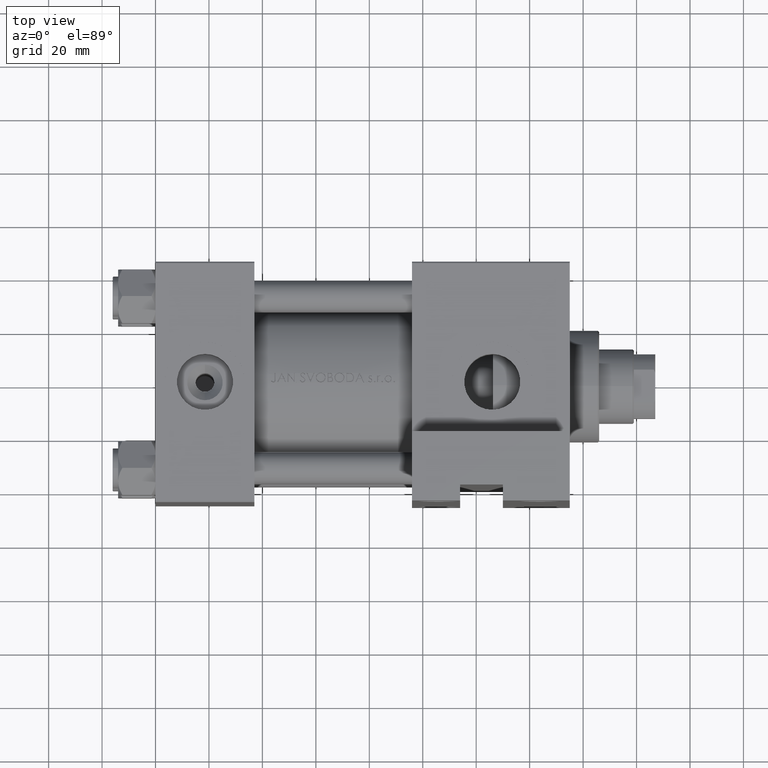
[diagram: clean part render]
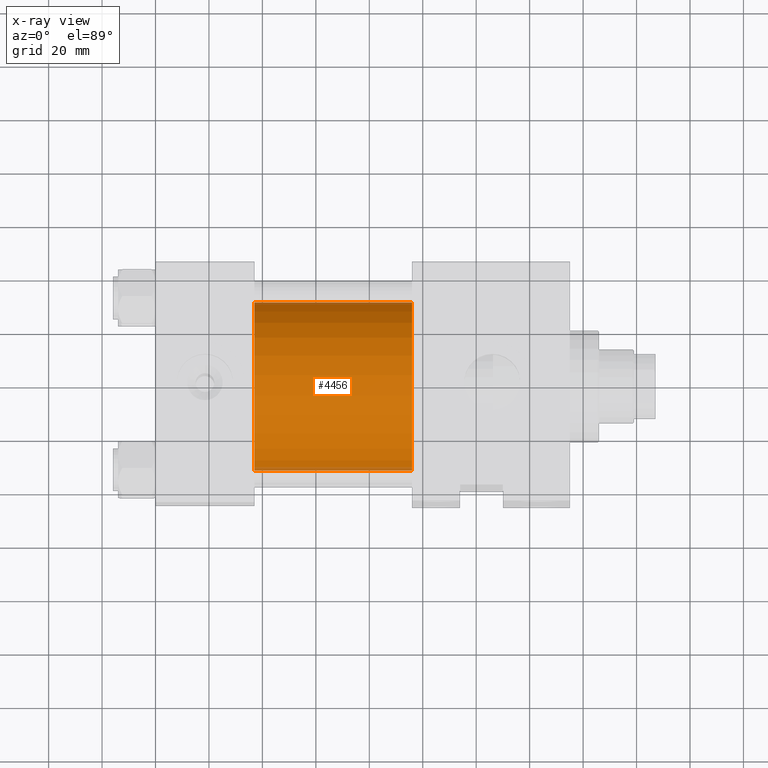
[diagram: x-ray — body ghosted, one internal face saturated and labeled with its STEP entity id]
A machine part, top view, then the same camera in x-ray: the body is ghosted and one INTERNAL B-rep face — a face not visible from any outside direction — is saturated and labeled: STEP entity #4456.
In plain terms, the highlighted cylindrical surface (partial cylindrical patch) has radius 31.5 mm, axis along (-1, -0, 0).
Its self-contained STEP definition (entity closure, byte-faithful):
#2651 = DIRECTION ( 'NONE',  ( 0.000000000000000000, 0.000000000000000000, -1.000000000000000000 ) ) ;
#2794 = VECTOR ( 'NONE', #8464, 1000.000000000000000 ) ;
#3828 = LINE ( 'NONE', #46071, #14780 ) ;
#4456 = ADVANCED_FACE ( 'NONE', ( #16370 ), #47045, .F. ) ;
#4750 = DIRECTION ( 'NONE',  ( 1.000000000000000000, 0.000000000000000000, 0.000000000000000000 ) ) ;
#5148 = CARTESIAN_POINT ( 'NONE',  ( 96.00000000000000000, 3.857637417314162689E-15, -32.50000000000000711 ) ) ;
#6674 = CARTESIAN_POINT ( 'NONE',  ( 96.00000000000000000, 0.000000000000000000, -1.000000000000007772 ) ) ;
#8464 = DIRECTION ( 'NONE',  ( -1.000000000000000000, -0.000000000000000000, -0.000000000000000000 ) ) ;
#10417 = ORIENTED_EDGE ( 'NONE', *, *, #38672, .F. ) ;
#11068 = ORIENTED_EDGE ( 'NONE', *, *, #31372, .T. ) ;
#11733 = EDGE_LOOP ( 'NONE', ( #11068, #22120, #23368, #10417 ) ) ;
#12852 = CARTESIAN_POINT ( 'NONE',  ( 96.00000000000000000, 0.000000000000000000, -1.000000000000007772 ) ) ;
#13920 = VERTEX_POINT ( 'NONE', #40876 ) ;
#14453 = AXIS2_PLACEMENT_3D ( 'NONE', #15847, #4750, #16322 ) ;
#14780 = VECTOR ( 'NONE', #18948, 1000.000000000000000 ) ;
#15595 = CARTESIAN_POINT ( 'NONE',  ( 37.00000000000000000, 0.000000000000000000, 30.49999999999999289 ) ) ;
#15847 = CARTESIAN_POINT ( 'NONE',  ( 37.00000000000000000, 0.000000000000000000, -1.000000000000007772 ) ) ;
#16322 = DIRECTION ( 'NONE',  ( 0.000000000000000000, 0.000000000000000000, -1.000000000000000000 ) ) ;
#16370 = FACE_OUTER_BOUND ( 'NONE', #11733, .T. ) ;
#18948 = DIRECTION ( 'NONE',  ( -1.000000000000000000, -0.000000000000000000, -0.000000000000000000 ) ) ;
#19282 = CIRCLE ( 'NONE', #14453, 31.50000000000000000 ) ;
#22120 = ORIENTED_EDGE ( 'NONE', *, *, #36871, .T. ) ;
#23368 = ORIENTED_EDGE ( 'NONE', *, *, #30877, .F. ) ;
#23547 = LINE ( 'NONE', #46683, #2794 ) ;
#25991 = AXIS2_PLACEMENT_3D ( 'NONE', #12852, #27442, #43263 ) ;
#26869 = VERTEX_POINT ( 'NONE', #37001 ) ;
#27442 = DIRECTION ( 'NONE',  ( -1.000000000000000000, -0.000000000000000000, -0.000000000000000000 ) ) ;
#27715 = VERTEX_POINT ( 'NONE', #5148 ) ;
#28118 = AXIS2_PLACEMENT_3D ( 'NONE', #6674, #41620, #2651 ) ;
#30526 = CIRCLE ( 'NONE', #28118, 31.50000000000000000 ) ;
#30877 = EDGE_CURVE ( 'NONE', #37855, #26869, #19282, .T. ) ;
#31372 = EDGE_CURVE ( 'NONE', #13920, #27715, #30526, .T. ) ;
#36871 = EDGE_CURVE ( 'NONE', #27715, #26869, #23547, .T. ) ;
#37001 = CARTESIAN_POINT ( 'NONE',  ( 37.00000000000000000, 3.857637417314162689E-15, -32.50000000000000711 ) ) ;
#37855 = VERTEX_POINT ( 'NONE', #15595 ) ;
#38672 = EDGE_CURVE ( 'NONE', #13920, #37855, #3828, .T. ) ;
#40876 = CARTESIAN_POINT ( 'NONE',  ( 96.00000000000000000, 0.000000000000000000, 30.49999999999999289 ) ) ;
#41620 = DIRECTION ( 'NONE',  ( 1.000000000000000000, 0.000000000000000000, 0.000000000000000000 ) ) ;
#43263 = DIRECTION ( 'NONE',  ( 0.000000000000000000, 0.000000000000000000, 1.000000000000000000 ) ) ;
#46071 = CARTESIAN_POINT ( 'NONE',  ( 96.00000000000000000, 0.000000000000000000, 30.49999999999999289 ) ) ;
#46683 = CARTESIAN_POINT ( 'NONE',  ( 96.00000000000000000, 3.857637417314162689E-15, -32.50000000000000711 ) ) ;
#47045 = CYLINDRICAL_SURFACE ( 'NONE', #25991, 31.50000000000000000 ) ;